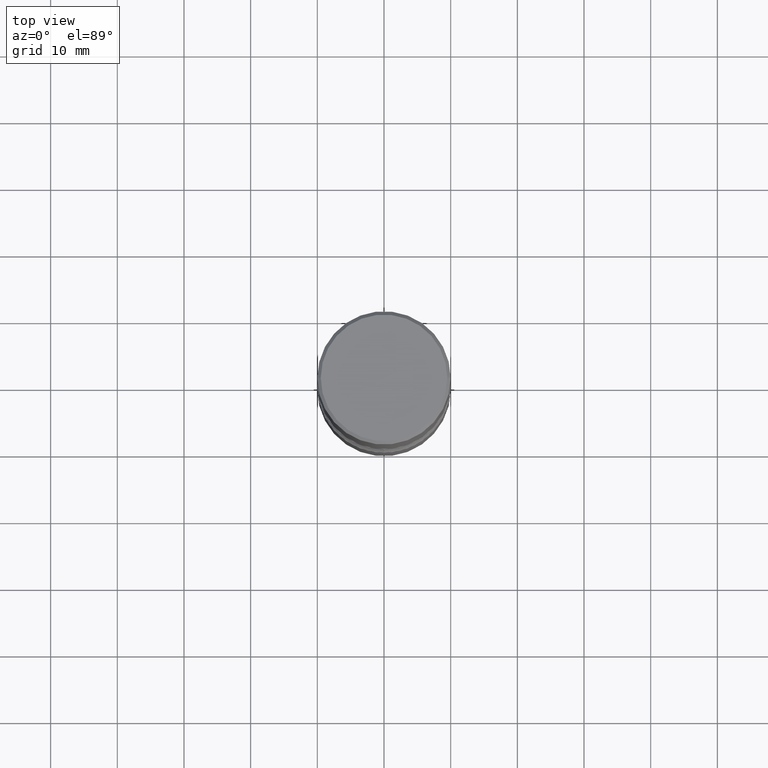
[diagram: clean part render]
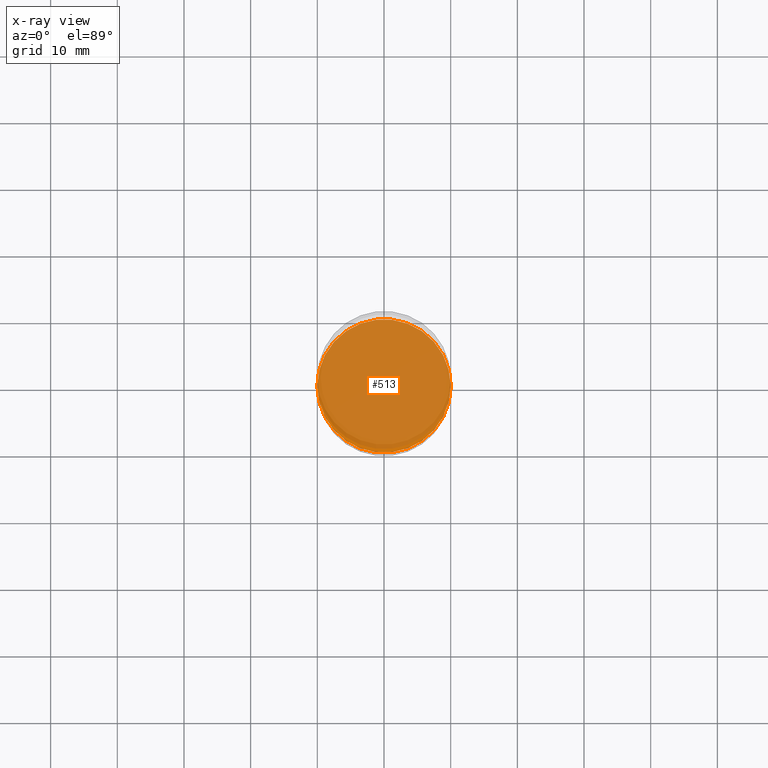
[diagram: x-ray — body ghosted, one internal face saturated and labeled with its STEP entity id]
A machine part, top view, then the same camera in x-ray: the body is ghosted and one INTERNAL B-rep face — a face not visible from any outside direction — is saturated and labeled: STEP entity #513.
In plain terms, the highlighted planar face has unit normal (0, -0, -1).
Its self-contained STEP definition (entity closure, byte-faithful):
#20 = EDGE_CURVE ( 'NONE', #401, #432, #361, .T. ) ;
#56 = AXIS2_PLACEMENT_3D ( 'NONE', #553, #332, #369 ) ;
#135 = AXIS2_PLACEMENT_3D ( 'NONE', #362, #485, #349 ) ;
#139 = ORIENTED_EDGE ( 'NONE', *, *, #346, .T. ) ;
#209 = DIRECTION ( 'NONE',  ( 2.438088387897960049E-29, -3.491481338843145188E-15, -1.000000000000000000 ) ) ;
#212 = CARTESIAN_POINT ( 'NONE',  ( -0.3937000000000002164, -9.023876192300660874E-15, -2.795200000000000351 ) ) ;
#247 = PLANE ( 'NONE',  #264 ) ;
#264 = AXIS2_PLACEMENT_3D ( 'NONE', #556, #209, #288 ) ;
#288 = DIRECTION ( 'NONE',  ( -1.000000000000000000, 6.982962677686265922E-15, -4.876176775795935793E-29 ) ) ;
#332 = DIRECTION ( 'NONE',  ( -2.445468806185136597E-29, 3.491481338843145583E-15, 1.000000000000000000 ) ) ;
#346 = EDGE_CURVE ( 'NONE', #432, #401, #375, .T. ) ;
#349 = DIRECTION ( 'NONE',  ( 1.000000000000000000, -6.982962677686269866E-15, 0.000000000000000000 ) ) ;
#361 = CIRCLE ( 'NONE', #56, 0.3937000000000002164 ) ;
#362 = CARTESIAN_POINT ( 'NONE',  ( 6.835574407048695164E-29, -9.759388638334361670E-15, -2.795200000000000351 ) ) ;
#369 = DIRECTION ( 'NONE',  ( 1.000000000000000000, -6.982962677686269866E-15, 0.000000000000000000 ) ) ;
#375 = CIRCLE ( 'NONE', #135, 0.3937000000000002164 ) ;
#396 = CARTESIAN_POINT ( 'NONE',  ( 0.3937000000000002164, -1.250858104453944804E-14, -2.795200000000000351 ) ) ;
#401 = VERTEX_POINT ( 'NONE', #396 ) ;
#432 = VERTEX_POINT ( 'NONE', #212 ) ;
#485 = DIRECTION ( 'NONE',  ( -2.445468806185136597E-29, 3.491481338843145583E-15, 1.000000000000000000 ) ) ;
#495 = ORIENTED_EDGE ( 'NONE', *, *, #20, .T. ) ;
#499 = FACE_OUTER_BOUND ( 'NONE', #558, .T. ) ;
#513 = ADVANCED_FACE ( 'NONE', ( #499 ), #247, .F. ) ;
#553 = CARTESIAN_POINT ( 'NONE',  ( 6.835574407048695164E-29, -9.759388638334361670E-15, -2.795200000000000351 ) ) ;
#556 = CARTESIAN_POINT ( 'NONE',  ( 4.126794496352893348E-29, -1.363851564462866640E-14, -2.795199999999999907 ) ) ;
#558 = EDGE_LOOP ( 'NONE', ( #495, #139 ) ) ;